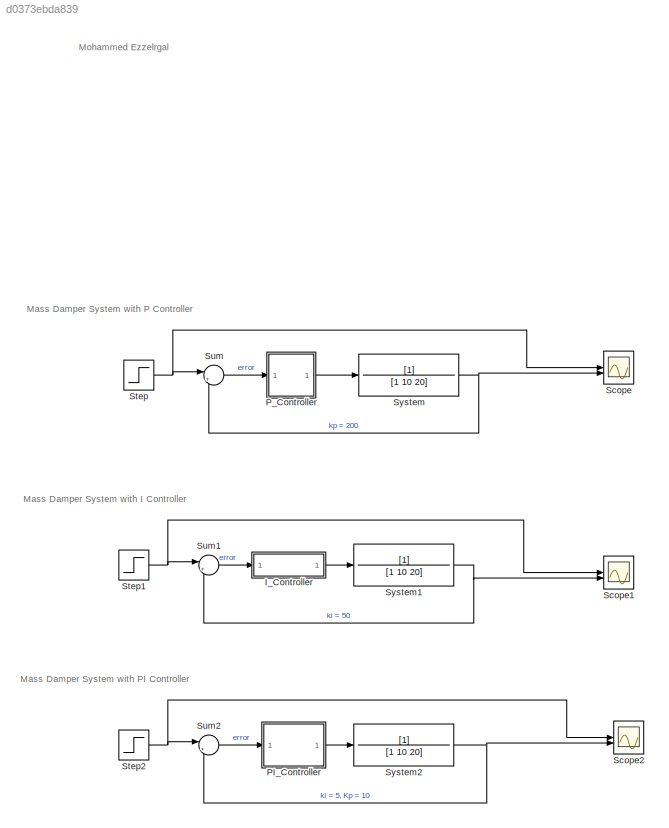
MODEL slx_d0373ebda839
KIND model
CONFIG AbsTol = auto
CONFIG EnableMultiTasking = off
CONFIG FixedStep = auto
CONFIG MaxStep = 0.001
CONFIG MinStep = auto
CONFIG RelTol = 1e-3
CONFIG SampleTimeConstraint = Unconstrained
CONFIG SolverName = VariableStepAuto
CONFIG StartTime = 0.0
CONFIG StopTime = 100
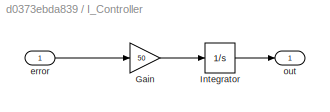
BLOCK [SubSystem] I_Controller
BLOCK [Gain] I_Controller/Gain
  Gain = 50
BLOCK [Integrator] I_Controller/Integrator
BLOCK [Inport] I_Controller/error
BLOCK [Outport] I_Controller/out
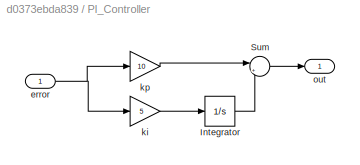
BLOCK [SubSystem] PI_Controller
BLOCK [Integrator] PI_Controller/Integrator
BLOCK [Sum] PI_Controller/Sum
  Inputs = |++
BLOCK [Inport] PI_Controller/error
BLOCK [Gain] PI_Controller/ki
  Gain = 5
BLOCK [Gain] PI_Controller/kp
  Gain = 10
BLOCK [Outport] PI_Controller/out
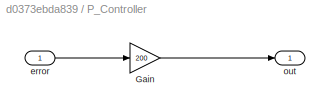
BLOCK [SubSystem] P_Controller
BLOCK [Gain] P_Controller/Gain
  Gain = 200
BLOCK [Inport] P_Controller/error
BLOCK [Outport] P_Controller/out
BLOCK [Scope] Scope
  Floating = off
  NumInputPorts = 2
  ScopeSpecificationString = Simulink.scopes.TimeScopeBlockCfg('CurrentConfiguration', extmgr.ConfigurationSet(extmgr.Configuration('Core','General UI',true),extmgr.Configuration('Core','Source UI',true),extmgr.Configuration('Sources','WiredSimulink',true),extmgr.Configuration('Visuals','Time Domain',true,'SerializedDisplays',{struct('MinYLimReal','-0.15053','MaxYLimReal','1.3548','YLabelReal','','MinYLimMag','0.00000','MaxYL...<+1331ch>
BLOCK [Scope] Scope1
  Floating = off
  NumInputPorts = 2
  ScopeSpecificationString = Simulink.scopes.TimeScopeBlockCfg('CurrentConfiguration', extmgr.ConfigurationSet(extmgr.Configuration('Core','General UI',true),extmgr.Configuration('Core','Source UI',true),extmgr.Configuration('Sources','WiredSimulink',true,'DataLoggingVariableName','ScopeData1'),extmgr.Configuration('Visuals','Time Domain',true,'SerializedDisplays',{struct('MinYLimReal','-0.16284','MaxYLimReal','1.46558','YLab...<+1374ch>
BLOCK [Scope] Scope2
  Floating = off
  NumInputPorts = 2
  ScopeSpecificationString = Simulink.scopes.TimeScopeBlockCfg('CurrentConfiguration', extmgr.ConfigurationSet(extmgr.Configuration('Core','General UI',true),extmgr.Configuration('Core','Source UI',true),extmgr.Configuration('Sources','WiredSimulink',true,'DataLoggingVariableName','ScopeData2'),extmgr.Configuration('Visuals','Time Domain',true,'SerializedDisplays',{struct('MinYLimReal','-0.125','MaxYLimReal','1.125','YLabelRe...<+1370ch>
BLOCK [Step] Step
  SampleTime = 0
BLOCK [Step] Step1
  SampleTime = 0
BLOCK [Step] Step2
  SampleTime = 0
BLOCK [Sum] Sum
  Inputs = |+-
BLOCK [Sum] Sum1
  Inputs = |+-
BLOCK [Sum] Sum2
  Inputs = |+-
BLOCK [TransferFcn] System
  Denominator = [1 10 20]
BLOCK [TransferFcn] System1
  Denominator = [1 10 20]
BLOCK [TransferFcn] System2
  Denominator = [1 10 20]
ANNOTATION (root): Mohammed Ezzelrgal
ANNOTATION (root): Mass Damper System with I Controller
ANNOTATION (root): Mass Damper System with P Controller
ANNOTATION (root): Mass Damper System with PI Controller
LINE I_Controller/Gain:1 -> I_Controller/Integrator:1
LINE I_Controller/Integrator:1 -> I_Controller/out:1
LINE I_Controller/error:1 -> I_Controller/Gain:1
LINE I_Controller:1 -> System1:1
LINE PI_Controller/Integrator:1 -> PI_Controller/Sum:2
LINE PI_Controller/Sum:1 -> PI_Controller/out:1
NET PI_Controller/error:1 -> PI_Controller/ki:1, PI_Controller/kp:1
LINE PI_Controller/ki:1 -> PI_Controller/Integrator:1
LINE PI_Controller/kp:1 -> PI_Controller/Sum:1
LINE PI_Controller:1 -> System2:1
LINE P_Controller/Gain:1 -> P_Controller/out:1
LINE P_Controller/error:1 -> P_Controller/Gain:1
LINE P_Controller:1 -> System:1
NET Step1:1 -> Scope1:1, Sum1:1
NET Step2:1 -> Scope2:1, Sum2:1
NET Step:1 -> Scope:1, Sum:1
LINE Sum1:1 -> I_Controller:1
LINE Sum2:1 -> PI_Controller:1
LINE Sum:1 -> P_Controller:1
NET System1:1 -> Scope1:2, Sum1:2
NET System2:1 -> Scope2:2, Sum2:2
NET System:1 -> Scope:2, Sum:2
note: NET lines group one-source signal fan-out (src -> all destinations, sorted); 1:1 wires keep LINE
